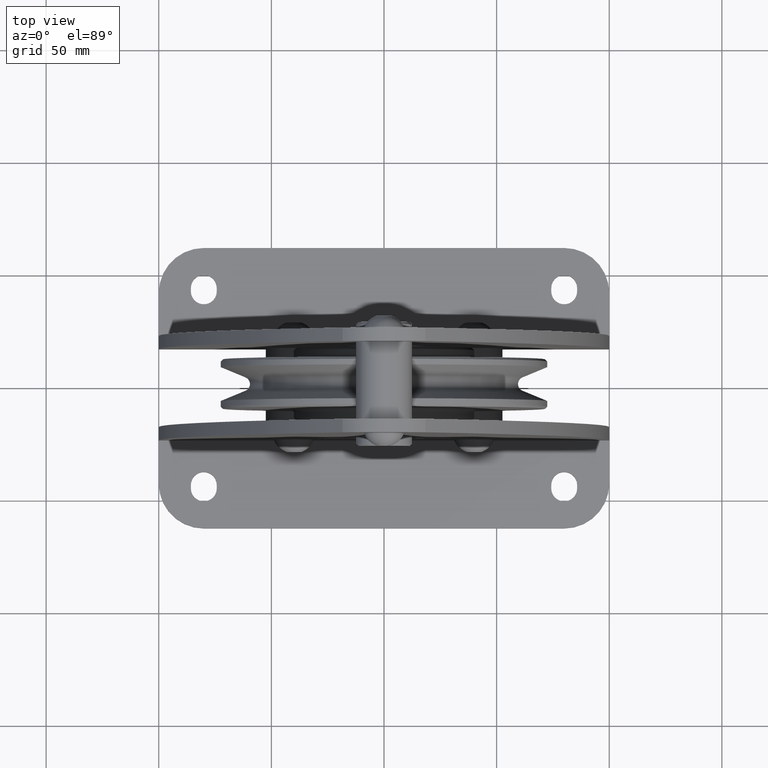
[diagram: clean part render]
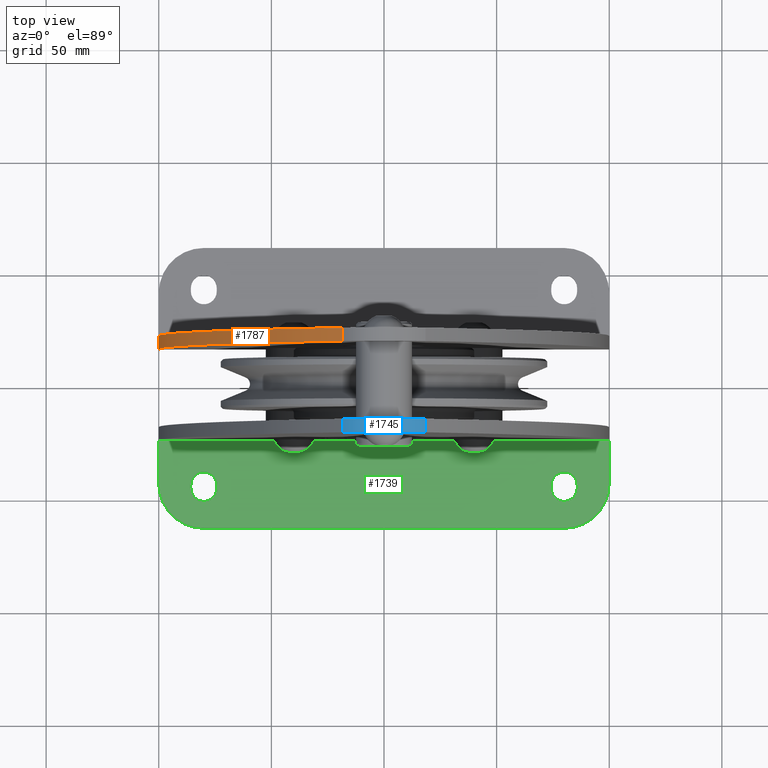
[diagram: same view with three faces highlighted in distinct colors, each labeled with its STEP entity id]
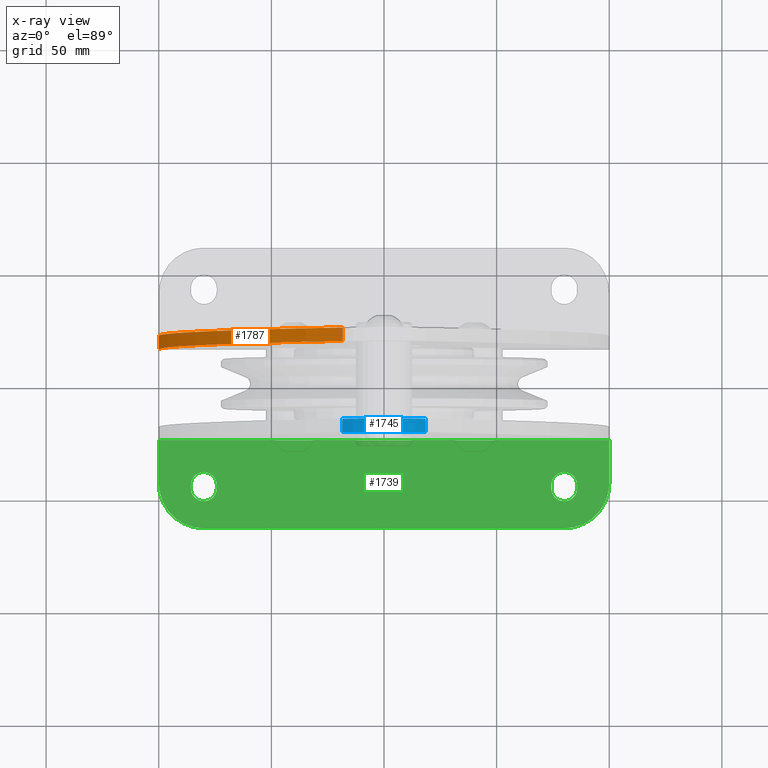
[diagram: x-ray of the same camera — body ghosted, the three highlighted faces saturated]
A machine part, top view with three faces highlighted in distinct colors.
The next image is the same camera in x-ray (body ghosted, the three faces saturated) — at least one of them is partly hidden behind the body in this view.
Their STEP definitions:

[orange] entity #1787 — the highlighted cylindrical surface (partial cylindrical patch) has radius 310 mm, axis along (0, 1, 0).
#1787=ADVANCED_FACE('',(#3755),#3756,.T.);
#3755=FACE_OUTER_BOUND('',#5861,.T.);
#3756=CYLINDRICAL_SURFACE('',#5862,309.999999979701);
#5861=EDGE_LOOP('',(#11550,#11551,#11552,#11553));
#5862=AXIS2_PLACEMENT_3D('',#11554,#11555,#11556);
#11550=ORIENTED_EDGE('',*,*,#14667,.T.);
#11551=ORIENTED_EDGE('',*,*,#14697,.F.);
#11552=ORIENTED_EDGE('',*,*,#14698,.T.);
#11553=ORIENTED_EDGE('',*,*,#14694,.T.);
#11554=CARTESIAN_POINT('',(209.999999979701,17.25,-103.9999999978));
#11555=DIRECTION('',(0.0,1.0,0.0));
#11556=DIRECTION('',(-1.0,0.0,-6.97995926336286E-012));
#14667=EDGE_CURVE('',#18207,#18205,#18208,.T.);
#14694=EDGE_CURVE('',#18247,#18207,#18248,.T.);
#14697=EDGE_CURVE('',#18251,#18205,#18252,.T.);
#14698=EDGE_CURVE('',#18251,#18247,#18253,.T.);
#18205=VERTEX_POINT('',#25944);
#18207=VERTEX_POINT('',#25947);
#18208=CIRCLE('',#25948,309.999999979701);
#18247=VERTEX_POINT('',#25999);
#18248=LINE('',#26000,#26001);
#18251=VERTEX_POINT('',#26004);
#18252=LINE('',#26005,#26006);
#18253=CIRCLE('',#26007,309.999999979701);
#25944=CARTESIAN_POINT('',(-100.0,23.25,-104.0));
#25947=CARTESIAN_POINT('',(-18.4210526299208,23.25,105.580110490116));
#25948=AXIS2_PLACEMENT_3D('',#29028,#29029,#29030);
#25999=CARTESIAN_POINT('',(-18.4210526299208,17.25,105.580110490116));
#26000=CARTESIAN_POINT('',(-18.4210526299208,17.25,105.580110490116));
#26001=VECTOR('',#29064,1.0);
#26004=CARTESIAN_POINT('',(-100.0,17.25,-104.0));
#26005=CARTESIAN_POINT('',(-100.0,17.25,-104.0));
#26006=VECTOR('',#29068,1.0);
#26007=AXIS2_PLACEMENT_3D('',#29069,#29070,#29071);
#29028=CARTESIAN_POINT('',(209.999999979701,23.25,-103.9999999978));
#29029=DIRECTION('',(0.0,-1.0,-0.0));
#29030=DIRECTION('',(-1.0,0.0,-6.97995926336286E-012));
#29064=DIRECTION('',(0.0,1.0,0.0));
#29068=DIRECTION('',(0.0,1.0,0.0));
#29069=CARTESIAN_POINT('',(209.999999979701,17.25,-103.9999999978));
#29070=DIRECTION('',(0.0,1.0,0.0));
#29071=DIRECTION('',(-1.0,0.0,-6.97995926336286E-012));

[blue] entity #1745 — the highlighted cylindrical surface (partial cylindrical patch) has radius 25 mm, axis along (0, -1, 0).
#1745=ADVANCED_FACE('',(#3680),#3681,.T.);
#3680=FACE_OUTER_BOUND('',#5786,.T.);
#3681=CYLINDRICAL_SURFACE('',#5787,24.999999988);
#5786=EDGE_LOOP('',(#11338,#11339,#11340,#11341));
#5787=AXIS2_PLACEMENT_3D('',#11342,#11343,#11344);
#11338=ORIENTED_EDGE('',*,*,#13389,.T.);
#11339=ORIENTED_EDGE('',*,*,#14620,.F.);
#11340=ORIENTED_EDGE('',*,*,#14621,.T.);
#11341=ORIENTED_EDGE('',*,*,#14617,.T.);
#11342=CARTESIAN_POINT('',(0.0,-17.25,88.678488692));
#11343=DIRECTION('',(0.0,-1.0,0.0));
#11344=DIRECTION('',(0.736842105554445,0.0,0.676064872243849));
#13389=EDGE_CURVE('',#16493,#16491,#16494,.T.);
#14617=EDGE_CURVE('',#18135,#16493,#18136,.T.);
#14620=EDGE_CURVE('',#18139,#16491,#18140,.T.);
#14621=EDGE_CURVE('',#18139,#18135,#18141,.T.);
#16491=VERTEX_POINT('',#22829);
#16493=VERTEX_POINT('',#22831);
#16494=CIRCLE('',#22832,24.999999988);
#18135=VERTEX_POINT('',#25852);
#18136=LINE('',#25853,#25854);
#18139=VERTEX_POINT('',#25857);
#18140=LINE('',#25858,#25859);
#18141=CIRCLE('',#25860,24.999999988);
#22829=CARTESIAN_POINT('',(18.4210526299208,-23.25,105.580110490116));
#22831=CARTESIAN_POINT('',(-18.421052630019,-23.25,105.580110489983));
#22832=AXIS2_PLACEMENT_3D('',#27812,#27813,#27814);
#25852=CARTESIAN_POINT('',(-18.421052630019,-17.25,105.580110489983));
#25853=CARTESIAN_POINT('',(-18.421052630019,-17.25,105.580110489983));
#25854=VECTOR('',#28966,1.0);
#25857=CARTESIAN_POINT('',(18.4210526299208,-17.25,105.580110490116));
#25858=CARTESIAN_POINT('',(18.4210526299208,-17.25,105.580110490116));
#25859=VECTOR('',#28970,1.0);
#25860=AXIS2_PLACEMENT_3D('',#28971,#28972,#28973);
#27812=CARTESIAN_POINT('',(0.0,-23.25,88.678488692));
#27813=DIRECTION('',(-0.0,1.0,0.0));
#27814=DIRECTION('',(0.736842105554445,0.0,0.676064872243849));
#28966=DIRECTION('',(0.0,-1.0,0.0));
#28970=DIRECTION('',(0.0,-1.0,0.0));
#28971=CARTESIAN_POINT('',(0.0,-17.25,88.678488692));
#28972=DIRECTION('',(0.0,-1.0,0.0));
#28973=DIRECTION('',(0.736842105554445,0.0,0.676064872243849));

[green] entity #1739 — the highlighted planar face has unit normal (0, 0, 1).
#1739=ADVANCED_FACE('',(#3669,#3670,#3671),#3672,.T.);
#3669=FACE_BOUND('',#5775,.T.);
#3670=FACE_BOUND('',#5776,.T.);
#3671=FACE_OUTER_BOUND('',#5777,.T.);
#3672=PLANE('',#5778);
#5775=EDGE_LOOP('',(#11303,#11304,#11305,#11306));
#5776=EDGE_LOOP('',(#11307,#11308,#11309,#11310));
#5777=EDGE_LOOP('',(#11311,#11312,#11313,#11314,#11315,#11316));
#5778=AXIS2_PLACEMENT_3D('',#11317,#11318,#11319);
#11303=ORIENTED_EDGE('',*,*,#14566,.T.);
#11304=ORIENTED_EDGE('',*,*,#14577,.T.);
#11305=ORIENTED_EDGE('',*,*,#14574,.T.);
#11306=ORIENTED_EDGE('',*,*,#14569,.T.);
#11307=ORIENTED_EDGE('',*,*,#14582,.T.);
#11308=ORIENTED_EDGE('',*,*,#14593,.T.);
#11309=ORIENTED_EDGE('',*,*,#14590,.T.);
#11310=ORIENTED_EDGE('',*,*,#14585,.T.);
#11311=ORIENTED_EDGE('',*,*,#14597,.F.);
#11312=ORIENTED_EDGE('',*,*,#14607,.F.);
#11313=ORIENTED_EDGE('',*,*,#14602,.F.);
#11314=ORIENTED_EDGE('',*,*,#14610,.F.);
#11315=ORIENTED_EDGE('',*,*,#13387,.F.);
#11316=ORIENTED_EDGE('',*,*,#14611,.F.);
#11317=CARTESIAN_POINT('',(9.32587340685131E-014,-41.8635175654384,-104.0));
#11318=DIRECTION('',(0.0,0.0,1.0));
#11319=DIRECTION('',(1.0,0.0,0.0));
#13387=EDGE_CURVE('',#16488,#16489,#16490,.T.);
#14566=EDGE_CURVE('',#18061,#18059,#18062,.T.);
#14569=EDGE_CURVE('',#18065,#18061,#18066,.T.);
#14574=EDGE_CURVE('',#18073,#18065,#18074,.T.);
#14577=EDGE_CURVE('',#18059,#18073,#18077,.T.);
#14582=EDGE_CURVE('',#18085,#18083,#18086,.T.);
#14585=EDGE_CURVE('',#18089,#18085,#18090,.T.);
#14590=EDGE_CURVE('',#18097,#18089,#18098,.T.);
#14593=EDGE_CURVE('',#18083,#18097,#18101,.T.);
#14597=EDGE_CURVE('',#18105,#18106,#18107,.T.);
#14602=EDGE_CURVE('',#18114,#18115,#18116,.T.);
#14607=EDGE_CURVE('',#18115,#18105,#18123,.T.);
#14610=EDGE_CURVE('',#16489,#18114,#18126,.T.);
#14611=EDGE_CURVE('',#18106,#16488,#18127,.T.);
#16488=VERTEX_POINT('',#22825);
#16489=VERTEX_POINT('',#22826);
#16490=LINE('',#22827,#22828);
#18059=VERTEX_POINT('',#25749);
#18061=VERTEX_POINT('',#25752);
#18062=CIRCLE('',#25753,5.75);
#18065=VERTEX_POINT('',#25757);
#18066=LINE('',#25758,#25759);
#18073=VERTEX_POINT('',#25768);
#18074=CIRCLE('',#25769,5.75);
#18077=LINE('',#25773,#25774);
#18083=VERTEX_POINT('',#25781);
#18085=VERTEX_POINT('',#25784);
#18086=CIRCLE('',#25785,5.75);
#18089=VERTEX_POINT('',#25789);
#18090=LINE('',#25790,#25791);
#18097=VERTEX_POINT('',#25800);
#18098=CIRCLE('',#25801,5.75);
#18101=LINE('',#25805,#25806);
#18105=VERTEX_POINT('',#25811);
#18106=VERTEX_POINT('',#25812);
#18107=CIRCLE('',#25813,20.0000000127);
#18114=VERTEX_POINT('',#25822);
#18115=VERTEX_POINT('',#25823);
#18116=CIRCLE('',#25824,20.0000000127);
#18123=LINE('',#25833,#25834);
#18126=LINE('',#25838,#25839);
#18127=LINE('',#25840,#25841);
#22825=CARTESIAN_POINT('',(-100.0,-23.25,-103.999999999964));
#22826=CARTESIAN_POINT('',(100.0,-23.25,-104.0));
#22827=CARTESIAN_POINT('',(-4.54747350886464E-013,-23.25,-104.0));
#22828=VECTOR('',#27808,1.0);
#25749=CARTESIAN_POINT('',(74.25,-44.5,-104.0));
#25752=CARTESIAN_POINT('',(85.75,-44.5,-104.0));
#25753=AXIS2_PLACEMENT_3D('',#28907,#28908,#28909);
#25757=CARTESIAN_POINT('',(85.75,-43.0,-104.0));
#25758=CARTESIAN_POINT('',(85.75,-42.8067587827192,-104.0));
#25759=VECTOR('',#28911,1.0);
#25768=CARTESIAN_POINT('',(74.25,-43.0,-104.0));
#25769=AXIS2_PLACEMENT_3D('',#28917,#28918,#28919);
#25773=CARTESIAN_POINT('',(74.25,-42.8067587827192,-104.0));
#25774=VECTOR('',#28921,1.0);
#25781=CARTESIAN_POINT('',(-85.75,-44.5,-104.0));
#25784=CARTESIAN_POINT('',(-74.25,-44.5,-104.0));
#25785=AXIS2_PLACEMENT_3D('',#28927,#28928,#28929);
#25789=CARTESIAN_POINT('',(-74.25,-43.0,-104.0));
#25790=CARTESIAN_POINT('',(-74.25,-42.8067587827192,-104.0));
#25791=VECTOR('',#28931,1.0);
#25800=CARTESIAN_POINT('',(-85.75,-43.0,-104.0));
#25801=AXIS2_PLACEMENT_3D('',#28937,#28938,#28939);
#25805=CARTESIAN_POINT('',(-85.75,-42.8067587827192,-104.0));
#25806=VECTOR('',#28941,1.0);
#25811=CARTESIAN_POINT('',(-80.0,-62.25,-104.0));
#25812=CARTESIAN_POINT('',(-100.0,-42.25,-104.0));
#25813=AXIS2_PLACEMENT_3D('',#28943,#28944,#28945);
#25822=CARTESIAN_POINT('',(100.0,-42.2500000000409,-104.0));
#25823=CARTESIAN_POINT('',(80.0,-62.25,-104.0));
#25824=AXIS2_PLACEMENT_3D('',#28951,#28952,#28953);
#25833=CARTESIAN_POINT('',(-80.0,-62.25,-104.0));
#25834=VECTOR('',#28959,1.0);
#25838=CARTESIAN_POINT('',(100.0,-42.25,-104.0));
#25839=VECTOR('',#28961,1.0);
#25840=CARTESIAN_POINT('',(-100.0,-23.25,-104.0));
#25841=VECTOR('',#28962,1.0);
#27808=DIRECTION('',(1.0,0.0,-0.0));
#28907=CARTESIAN_POINT('',(80.0,-44.5,-104.0));
#28908=DIRECTION('',(0.0,0.0,-1.0));
#28909=DIRECTION('',(1.0,5.02013889395723E-016,0.0));
#28911=DIRECTION('',(-0.0,-1.0,0.0));
#28917=CARTESIAN_POINT('',(80.0,-43.0,-104.0));
#28918=DIRECTION('',(-0.0,0.0,-1.0));
#28919=DIRECTION('',(-1.0,-2.31698718182641E-016,0.0));
#28921=DIRECTION('',(0.0,1.0,-0.0));
#28927=CARTESIAN_POINT('',(-80.0,-44.5,-104.0));
#28928=DIRECTION('',(0.0,0.0,-1.0));
#28929=DIRECTION('',(1.0,5.02013889395723E-016,0.0));
#28931=DIRECTION('',(-0.0,-1.0,0.0));
#28937=CARTESIAN_POINT('',(-80.0,-43.0,-104.0));
#28938=DIRECTION('',(-0.0,0.0,-1.0));
#28939=DIRECTION('',(-1.0,-2.31698718182641E-016,0.0));
#28941=DIRECTION('',(0.0,1.0,-0.0));
#28943=CARTESIAN_POINT('',(-79.9999999873,-42.2499999873,-104.0));
#28944=DIRECTION('',(-0.0,0.0,-1.0));
#28945=DIRECTION('',(-1.0,-6.37044905311288E-010,0.0));
#28951=CARTESIAN_POINT('',(79.9999999873,-42.2499999873,-104.0));
#28952=DIRECTION('',(0.0,-0.0,-1.0));
#28953=DIRECTION('',(6.37043484225818E-010,-1.0,0.0));
#28959=DIRECTION('',(-1.0,-0.0,-0.0));
#28961=DIRECTION('',(-0.0,-1.0,-0.0));
#28962=DIRECTION('',(0.0,1.0,0.0));